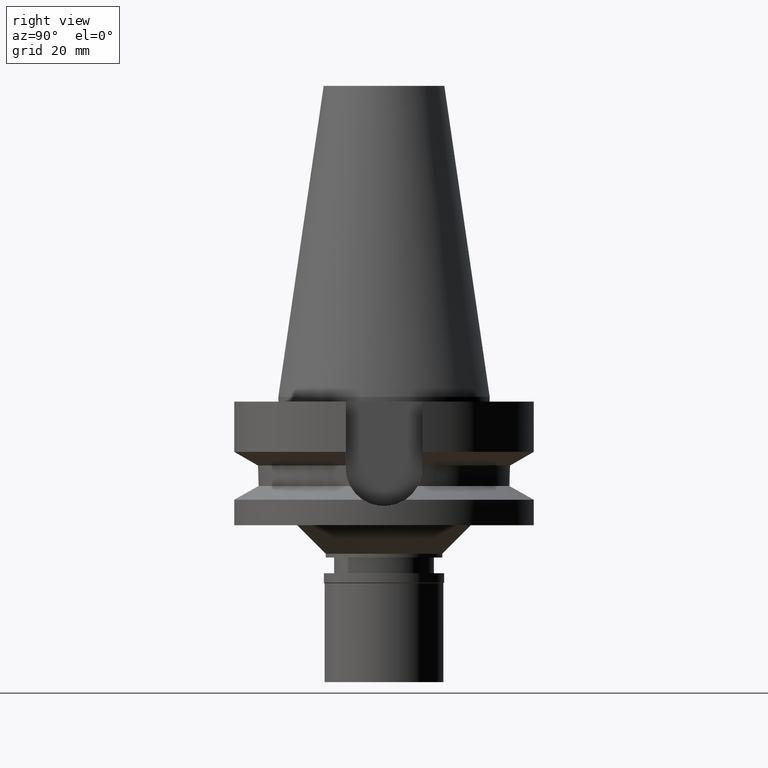
[diagram: clean part render]
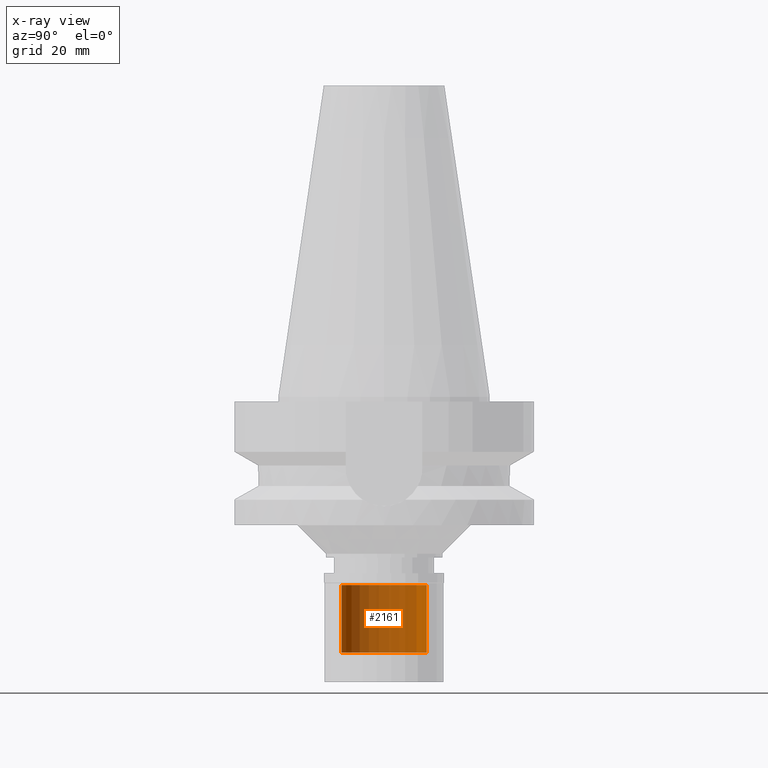
[diagram: x-ray — body ghosted, one internal face saturated and labeled with its STEP entity id]
A machine part, right view, then the same camera in x-ray: the body is ghosted and one INTERNAL B-rep face — a face not visible from any outside direction — is saturated and labeled: STEP entity #2161.
In plain terms, the highlighted cylindrical surface (partial cylindrical patch) has radius 9 mm, axis along (0, 0, -1).
Its self-contained STEP definition (entity closure, byte-faithful):
#9 = EDGE_CURVE ( 'NONE', #2359, #262, #2605, .T. ) ;
#18 = ORIENTED_EDGE ( 'NONE', *, *, #9, .T. ) ;
#52 = EDGE_CURVE ( 'NONE', #262, #2552, #548, .T. ) ;
#168 = DIRECTION ( 'NONE',  ( 0.0000000000000000000, 1.000000000000000000, 0.0000000000000000000 ) ) ;
#217 = DIRECTION ( 'NONE',  ( 0.0000000000000000000, -1.000000000000000000, 0.0000000000000000000 ) ) ;
#247 = EDGE_CURVE ( 'NONE', #1351, #2552, #2071, .T. ) ;
#262 = VERTEX_POINT ( 'NONE', #2765 ) ;
#538 = ORIENTED_EDGE ( 'NONE', *, *, #247, .F. ) ;
#548 = CIRCLE ( 'NONE', #2975, 9.000000000000000000 ) ;
#853 = ORIENTED_EDGE ( 'NONE', *, *, #52, .T. ) ;
#997 = AXIS2_PLACEMENT_3D ( 'NONE', #3001, #1379, #217 ) ;
#1097 = DIRECTION ( 'NONE',  ( 0.0000000000000000000, 0.0000000000000000000, 1.000000000000000000 ) ) ;
#1125 = VECTOR ( 'NONE', #3000, 1000.000000000000000 ) ;
#1133 = CARTESIAN_POINT ( 'NONE',  ( 0.0000000000000000000, 0.0000000000000000000, 0.0000000000000000000 ) ) ;
#1327 = EDGE_CURVE ( 'NONE', #1351, #2359, #1422, .T. ) ;
#1351 = VERTEX_POINT ( 'NONE', #1594 ) ;
#1379 = DIRECTION ( 'NONE',  ( 0.0000000000000000000, 0.0000000000000000000, -1.000000000000000000 ) ) ;
#1422 = CIRCLE ( 'NONE', #997, 9.000000000000000000 ) ;
#1424 = CARTESIAN_POINT ( 'NONE',  ( 0.0000000000000000000, -9.000000000000000000, -16.69999999999999929 ) ) ;
#1447 = CARTESIAN_POINT ( 'NONE',  ( 0.0000000000000000000, 9.000000000000000000, -16.69999999999999929 ) ) ;
#1537 = CYLINDRICAL_SURFACE ( 'NONE', #2529, 9.000000000000000000 ) ;
#1594 = CARTESIAN_POINT ( 'NONE',  ( 0.0000000000000000000, -9.000000000000000000, -16.69999999999999929 ) ) ;
#1762 = DIRECTION ( 'NONE',  ( 0.0000000000000000000, 0.0000000000000000000, -1.000000000000000000 ) ) ;
#1790 = FACE_OUTER_BOUND ( 'NONE', #2488, .T. ) ;
#2071 = LINE ( 'NONE', #1424, #1125 ) ;
#2101 = VECTOR ( 'NONE', #2167, 1000.000000000000000 ) ;
#2134 = ORIENTED_EDGE ( 'NONE', *, *, #1327, .T. ) ;
#2161 = ADVANCED_FACE ( 'NONE', ( #1790 ), #1537, .F. ) ;
#2167 = DIRECTION ( 'NONE',  ( 0.0000000000000000000, 0.0000000000000000000, 1.000000000000000000 ) ) ;
#2359 = VERTEX_POINT ( 'NONE', #2849 ) ;
#2449 = CARTESIAN_POINT ( 'NONE',  ( 0.0000000000000000000, -9.000000000000000000, -2.500000000000000000 ) ) ;
#2488 = EDGE_LOOP ( 'NONE', ( #853, #538, #2134, #18 ) ) ;
#2529 = AXIS2_PLACEMENT_3D ( 'NONE', #1133, #1762, #2911 ) ;
#2552 = VERTEX_POINT ( 'NONE', #2449 ) ;
#2605 = LINE ( 'NONE', #1447, #2101 ) ;
#2765 = CARTESIAN_POINT ( 'NONE',  ( 0.0000000000000000000, 9.000000000000000000, -2.500000000000000000 ) ) ;
#2849 = CARTESIAN_POINT ( 'NONE',  ( 0.0000000000000000000, 9.000000000000000000, -16.69999999999999929 ) ) ;
#2911 = DIRECTION ( 'NONE',  ( 0.0000000000000000000, -1.000000000000000000, 0.0000000000000000000 ) ) ;
#2917 = CARTESIAN_POINT ( 'NONE',  ( 0.0000000000000000000, 0.0000000000000000000, -2.500000000000000000 ) ) ;
#2975 = AXIS2_PLACEMENT_3D ( 'NONE', #2917, #1097, #168 ) ;
#3000 = DIRECTION ( 'NONE',  ( 0.0000000000000000000, 0.0000000000000000000, 1.000000000000000000 ) ) ;
#3001 = CARTESIAN_POINT ( 'NONE',  ( 0.0000000000000000000, 0.0000000000000000000, -16.69999999999999929 ) ) ;